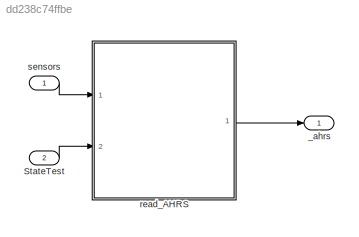
MODEL slx_dd238c74ffbe
KIND model
CONFIG InitFcn = %load QuadCopterParameters
BLOCK [Inport] StateTest
  IconDisplay = Port number
  OutDataTypeStr = Bus: VehicleStates
  Port = 2
BLOCK [Outport] _ahrs
  IconDisplay = Port number
  OutDataTypeStr = Bus: VehicleStates
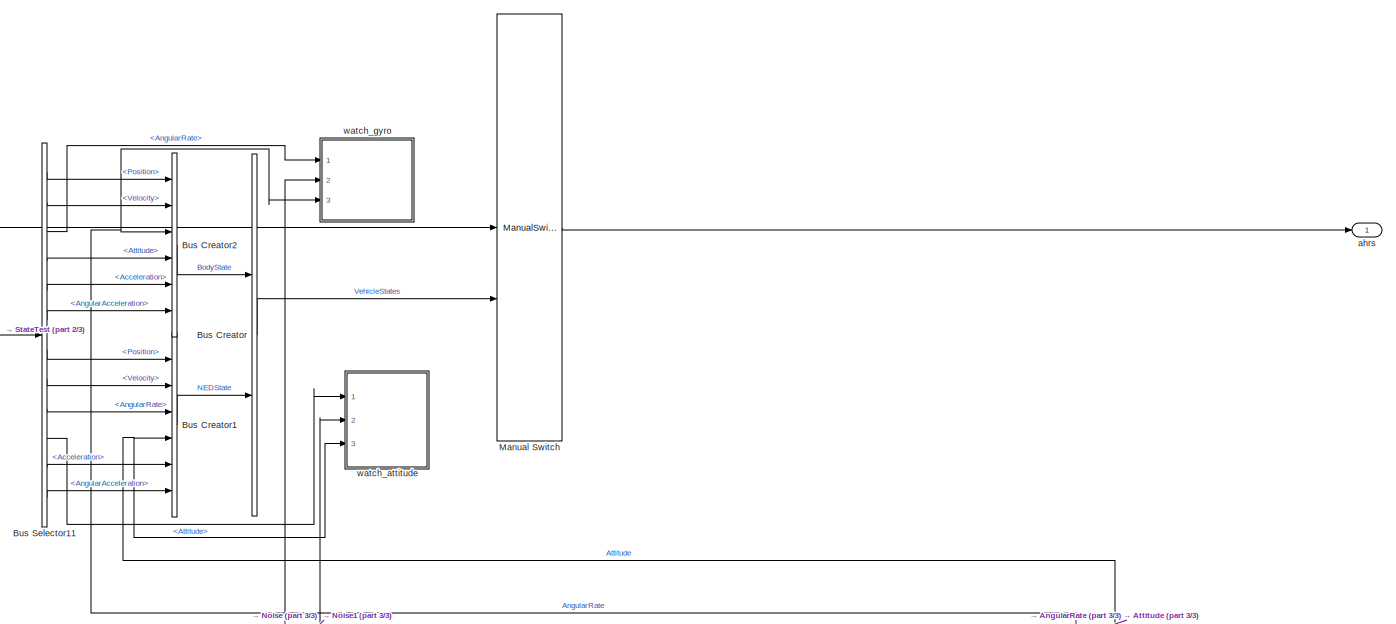
[diagram: read_AHRS - part 1/3, top right region]
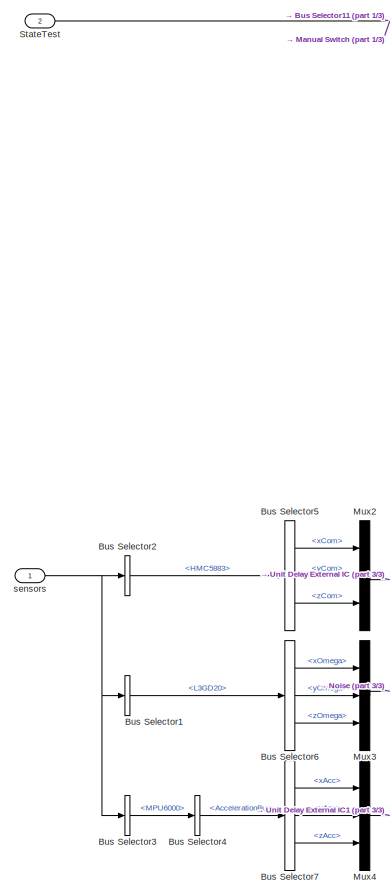
[diagram: read_AHRS - part 2/3, middle left region]
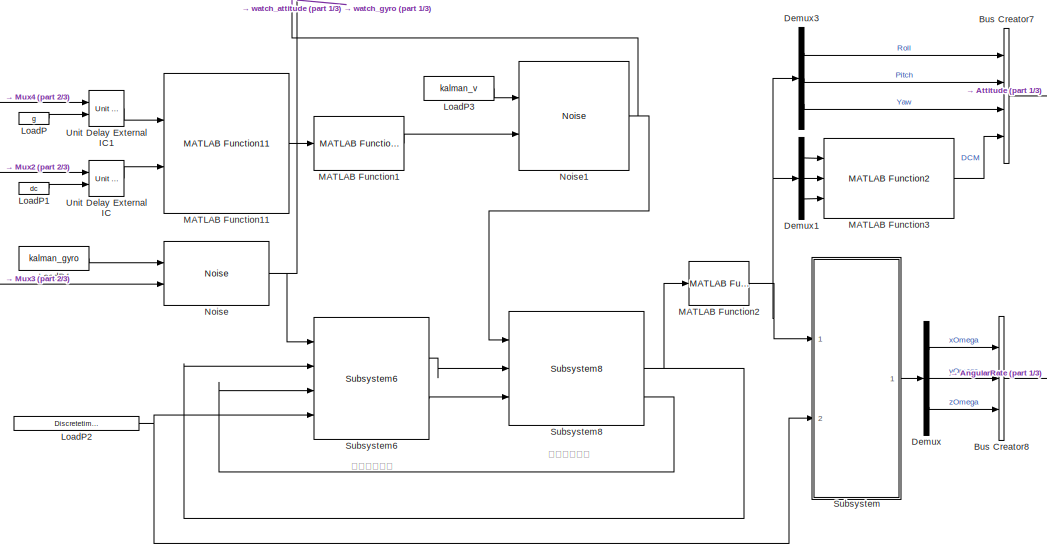
[diagram: read_AHRS - part 3/3, bottom center region]
BLOCK [SubSystem] read_AHRS
  Ports = [2, 1]
  RequestExecContextInheritance = off
BLOCK [BusCreator] read_AHRS/Bus Creator
  DisplayOption = bar
  Inputs = 2
  OutDataTypeStr = Bus: VehicleStates
  Ports = [2, 1]
BLOCK [BusCreator] read_AHRS/Bus Creator1
  DisplayOption = bar
  Inputs = 6
  OutDataTypeStr = Bus: States
  Ports = [6, 1]
BLOCK [BusCreator] read_AHRS/Bus Creator2
  DisplayOption = bar
  Inputs = 6
  OutDataTypeStr = Bus: States
  Ports = [6, 1]
BLOCK [BusCreator] read_AHRS/Bus Creator7
  DisplayOption = bar
  OutDataTypeStr = Bus: AttitudeBus
  Ports = [4, 1]
BLOCK [BusCreator] read_AHRS/Bus Creator8
  DisplayOption = bar
  Inputs = 3
  OutDataTypeStr = Bus: AngularRateBus
  Ports = [3, 1]
BLOCK [BusSelector] read_AHRS/Bus Selector1
  OutputSignals = L3GD20
  Ports = [1, 1]
BLOCK [BusSelector] read_AHRS/Bus Selector11
  OutputSignals = BodyState.Position,BodyState.Velocity,BodyState.AngularRate,BodyState.Attitude,BodyState.Acceleration,BodyState.AngularAcceleration,NEDState.Position,NEDState.Velocity,NEDState.AngularRate,NEDState.Attitude,NEDState.Acceleration,NEDState.AngularAcceleration
  Ports = [1, 12]
BLOCK [BusSelector] read_AHRS/Bus Selector2
  OutputSignals = HMC5883
  Ports = [1, 1]
BLOCK [BusSelector] read_AHRS/Bus Selector3
  OutputSignals = MPU6000
  Ports = [1, 1]
BLOCK [BusSelector] read_AHRS/Bus Selector4
  OutputSignals = AccelerationBus
  Ports = [1, 1]
BLOCK [BusSelector] read_AHRS/Bus Selector5
  OutputSignals = xCom,yCom,zCom
  Ports = [1, 3]
BLOCK [BusSelector] read_AHRS/Bus Selector6
  OutputSignals = xOmega,yOmega,zOmega
  Ports = [1, 3]
BLOCK [BusSelector] read_AHRS/Bus Selector7
  OutputSignals = xAcc,yAcc,zAcc
  Ports = [1, 3]
BLOCK [Demux] read_AHRS/Demux
  DisplayOption = bar
  Outputs = 3
  Ports = [1, 3]
BLOCK [Demux] read_AHRS/Demux1
  DisplayOption = bar
  Outputs = 3
  Ports = [1, 3]
BLOCK [Demux] read_AHRS/Demux3
  DisplayOption = bar
  Outputs = 3
  Ports = [1, 3]
BLOCK [Constant] read_AHRS/LoadP
  SampleTime = 0.0025
  Value = g
BLOCK [Constant] read_AHRS/LoadP1
  SampleTime = 0.0025
  Value = dc
BLOCK [Constant] read_AHRS/LoadP2
  SampleTime = -1
  Value = Discretetime_400Hz
BLOCK [Constant] read_AHRS/LoadP3
  SampleTime = 0.0025
  Value = kalman_v
BLOCK [Constant] read_AHRS/LoadP4
  SampleTime = 0.0025
  Value = kalman_gyro
BLOCK [Reference] read_AHRS/MATLAB Function1  REF=Lib_AP_AHRS/MATLAB Function1
  Ports = [1, 1]
  SourceBlock = Lib_AP_AHRS/MATLAB Function1
  SourceType = SubSystem
BLOCK [Reference] read_AHRS/MATLAB Function11  REF=Lib_AP_AHRS/MATLAB Function11
  Ports = [2, 1]
  SourceBlock = Lib_AP_AHRS/MATLAB Function11
  SourceType = SubSystem
BLOCK [Reference] read_AHRS/MATLAB Function2  REF=Lib_AP_AHRS/MATLAB Function1
  Ports = [1, 1]
  SourceBlock = Lib_AP_AHRS/MATLAB Function1
  SourceType = SubSystem
BLOCK [Reference] read_AHRS/MATLAB Function3  REF=Lib_AP_AHRS/MATLAB Function2
  Ports = [3, 1]
  SourceBlock = Lib_AP_AHRS/MATLAB Function2
  SourceType = SubSystem
BLOCK [ManualSwitch] read_AHRS/Manual Switch
  CurrentSetting = 0
BLOCK [Mux] read_AHRS/Mux2
  DisplayOption = bar
  Inputs = 3
  Ports = [3, 1]
BLOCK [Mux] read_AHRS/Mux3
  DisplayOption = bar
  Inputs = 3
  Ports = [3, 1]
BLOCK [Mux] read_AHRS/Mux4
  DisplayOption = bar
  Inputs = 3
  Ports = [3, 1]
BLOCK [Reference] read_AHRS/Noise  REF=Lib_Sensors/Noise
  Ports = [2, 1]
  SourceBlock = Lib_Sensors/Noise
  SourceType = SubSystem
BLOCK [Reference] read_AHRS/Noise1  REF=Lib_Sensors/Noise
  Ports = [2, 1]
  SourceBlock = Lib_Sensors/Noise
  SourceType = SubSystem
BLOCK [Inport] read_AHRS/StateTest
  IconDisplay = Port number
  OutDataTypeStr = Bus: VehicleStates
  Port = 2
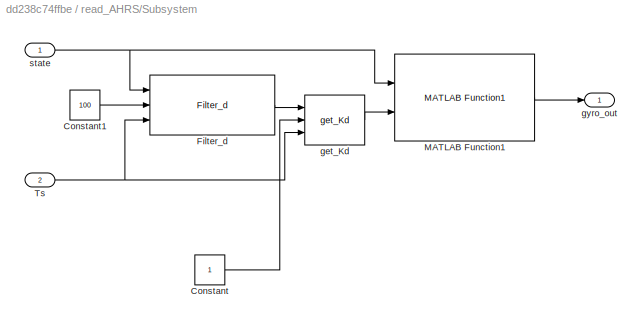
BLOCK [SubSystem] read_AHRS/Subsystem
  Ports = [2, 1]
  RequestExecContextInheritance = off
BLOCK [Constant] read_AHRS/Subsystem/Constant
BLOCK [Constant] read_AHRS/Subsystem/Constant1
  Value = 100
BLOCK [Reference] read_AHRS/Subsystem/Filter_d  REF=Lib_AC_PID/Filter_d
  Description = Tz是时间常数。时间常数一般不小于0.01，否则会振荡。
  Ports = [3, 1]
  SourceBlock = Lib_AC_PID/Filter_d
  SourceType = SubSystem
BLOCK [Reference] read_AHRS/Subsystem/MATLAB Function1  REF=Lib_AC_AttitudeControl/MATLAB Function1
  Ports = [2, 1]
  SourceBlock = Lib_AC_AttitudeControl/MATLAB Function1
  SourceType = SubSystem
BLOCK [Inport] read_AHRS/Subsystem/Ts
  IconDisplay = Port number
  Port = 2
BLOCK [Reference] read_AHRS/Subsystem/get_Kd  REF=Lib_AC_PID/get_Kd
  Ports = [3, 1]
  SourceBlock = Lib_AC_PID/get_Kd
  SourceType = SubSystem
BLOCK [Outport] read_AHRS/Subsystem/gyro_out
  IconDisplay = Port number
BLOCK [Inport] read_AHRS/Subsystem/state
  IconDisplay = Port number
BLOCK [Reference] read_AHRS/Subsystem6  REF=Lib_AP_AHRS/Subsystem6
  Ports = [4, 2]
  SourceBlock = Lib_AP_AHRS/Subsystem6
  SourceType = SubSystem
BLOCK [Reference] read_AHRS/Subsystem8  REF=Lib_AP_AHRS/Subsystem8
  Ports = [3, 3]
  SourceBlock = Lib_AP_AHRS/Subsystem8
  SourceType = SubSystem
BLOCK [Reference] read_AHRS/Unit Delay External IC  REF=simulink/Additional Math
& Discrete/Additional
Discrete/Unit Delay
External IC
  Ports = [2, 1]
  SourceBlock = simulink/Additional Math\n& Discrete/Additional\nDiscrete/Unit Delay\nExternal IC
  SourceType = Unit Delay External Initial Condition
  tsamp = 0.0025
BLOCK [Reference] read_AHRS/Unit Delay External IC1  REF=simulink/Additional Math
& Discrete/Additional
Discrete/Unit Delay
External IC
  Ports = [2, 1]
  SourceBlock = simulink/Additional Math\n& Discrete/Additional\nDiscrete/Unit Delay\nExternal IC
  SourceType = Unit Delay External Initial Condition
  tsamp = 0.0025
BLOCK [Outport] read_AHRS/ahrs
  IconDisplay = Port number
BLOCK [Inport] read_AHRS/sensors
  IconDisplay = Port number
  OutDataTypeStr = Bus: Sensors
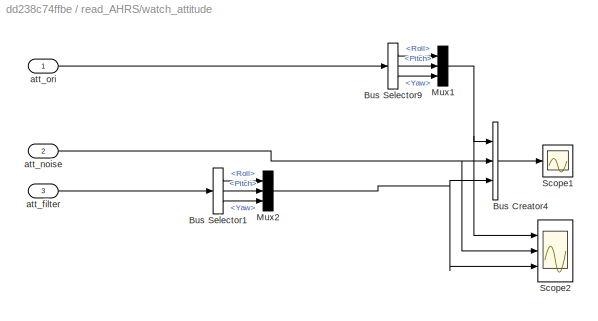
BLOCK [SubSystem] read_AHRS/watch_attitude
  Ports = [3]
  RequestExecContextInheritance = off
BLOCK [BusCreator] read_AHRS/watch_attitude/Bus Creator4
  DisplayOption = bar
  Inputs = 3
  Ports = [3, 1]
BLOCK [BusSelector] read_AHRS/watch_attitude/Bus Selector1
  OutputSignals = Roll,Pitch,Yaw
  Ports = [1, 3]
BLOCK [BusSelector] read_AHRS/watch_attitude/Bus Selector9
  OutputSignals = Roll,Pitch,Yaw
  Ports = [1, 3]
BLOCK [Mux] read_AHRS/watch_attitude/Mux1
  DisplayOption = bar
  Inputs = 3
  Ports = [3, 1]
BLOCK [Mux] read_AHRS/watch_attitude/Mux2
  DisplayOption = bar
  Inputs = 3
  Ports = [3, 1]
BLOCK [Scope] read_AHRS/watch_attitude/Scope1
  Floating = off
  NumInputPorts = 1
  Ports = [1]
  SaveName = ScopeData1
  ShowLegends = off
  ZoomMode = xonly
BLOCK [Scope] read_AHRS/watch_attitude/Scope2
  Floating = off
  NumInputPorts = 3
  Ports = [3]
  ShowLegends = off
  YMax = 5~5~5
  YMin = -5~-5~-5
  ZoomMode = yonly
BLOCK [Inport] read_AHRS/watch_attitude/att_filter
  IconDisplay = Port number
  Port = 3
BLOCK [Inport] read_AHRS/watch_attitude/att_noise
  IconDisplay = Port number
  Port = 2
BLOCK [Inport] read_AHRS/watch_attitude/att_ori
  IconDisplay = Port number
  OutDataTypeStr = Bus: AttitudeBus
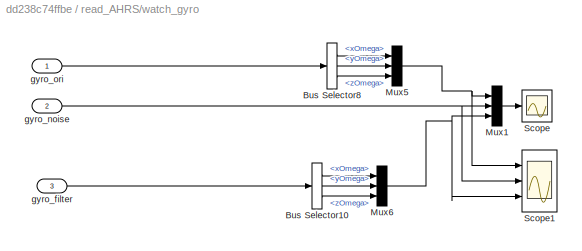
BLOCK [SubSystem] read_AHRS/watch_gyro
  Ports = [3]
  RequestExecContextInheritance = off
BLOCK [BusSelector] read_AHRS/watch_gyro/Bus Selector10
  OutputSignals = xOmega,yOmega,zOmega
  Ports = [1, 3]
BLOCK [BusSelector] read_AHRS/watch_gyro/Bus Selector8
  OutputSignals = xOmega,yOmega,zOmega
  Ports = [1, 3]
BLOCK [Mux] read_AHRS/watch_gyro/Mux1
  DisplayOption = bar
  Inputs = 3
  Ports = [3, 1]
BLOCK [Mux] read_AHRS/watch_gyro/Mux5
  DisplayOption = bar
  Inputs = 3
  Ports = [3, 1]
BLOCK [Mux] read_AHRS/watch_gyro/Mux6
  DisplayOption = bar
  Inputs = 3
  Ports = [3, 1]
BLOCK [Scope] read_AHRS/watch_gyro/Scope
  Floating = off
  NumInputPorts = 1
  Ports = [1]
  ShowLegends = off
  ZoomMode = xonly
BLOCK [Scope] read_AHRS/watch_gyro/Scope1
  Floating = off
  NumInputPorts = 3
  Ports = [3]
  SaveName = ScopeData1
  ShowLegends = off
  YMax = 5~5~5
  YMin = -5~-5~-5
  ZoomMode = yonly
BLOCK [Inport] read_AHRS/watch_gyro/gyro_filter
  IconDisplay = Port number
  OutDataTypeStr = Bus: AngularRateBus
  Port = 3
BLOCK [Inport] read_AHRS/watch_gyro/gyro_noise
  IconDisplay = Port number
  Port = 2
BLOCK [Inport] read_AHRS/watch_gyro/gyro_ori
  IconDisplay = Port number
  OutDataTypeStr = Bus: AngularRateBus
BLOCK [Inport] sensors
  IconDisplay = Port number
  OutDataTypeStr = Bus: Sensors
ANNOTATION read_AHRS: 时间更新方程
ANNOTATION read_AHRS: 测量更新方程
LINE StateTest:1 -> read_AHRS:2
LINE read_AHRS/Bus Creator1:1 -> read_AHRS/Bus Creator:2
LINE read_AHRS/Bus Creator2:1 -> read_AHRS/Bus Creator:1
NET read_AHRS/Bus Creator7:1 -> read_AHRS/Bus Creator1:4, read_AHRS/watch_attitude:3
NET read_AHRS/Bus Creator8:1 -> read_AHRS/Bus Creator2:3, read_AHRS/watch_gyro:3
LINE read_AHRS/Bus Creator:1 -> read_AHRS/Manual Switch:2
LINE read_AHRS/Bus Selector11:1 -> read_AHRS/Bus Creator2:1
LINE read_AHRS/Bus Selector11:10 -> read_AHRS/watch_attitude:1
LINE read_AHRS/Bus Selector11:11 -> read_AHRS/Bus Creator1:5
LINE read_AHRS/Bus Selector11:12 -> read_AHRS/Bus Creator1:6
LINE read_AHRS/Bus Selector11:2 -> read_AHRS/Bus Creator2:2
LINE read_AHRS/Bus Selector11:3 -> read_AHRS/watch_gyro:1
LINE read_AHRS/Bus Selector11:4 -> read_AHRS/Bus Creator2:4
LINE read_AHRS/Bus Selector11:5 -> read_AHRS/Bus Creator2:5
LINE read_AHRS/Bus Selector11:6 -> read_AHRS/Bus Creator2:6
LINE read_AHRS/Bus Selector11:7 -> read_AHRS/Bus Creator1:1
LINE read_AHRS/Bus Selector11:8 -> read_AHRS/Bus Creator1:2
LINE read_AHRS/Bus Selector11:9 -> read_AHRS/Bus Creator1:3
LINE read_AHRS/Bus Selector1:1 -> read_AHRS/Bus Selector6:1
LINE read_AHRS/Bus Selector2:1 -> read_AHRS/Bus Selector5:1
LINE read_AHRS/Bus Selector3:1 -> read_AHRS/Bus Selector4:1
LINE read_AHRS/Bus Selector4:1 -> read_AHRS/Bus Selector7:1
LINE read_AHRS/Bus Selector5:1 -> read_AHRS/Mux2:1
LINE read_AHRS/Bus Selector5:2 -> read_AHRS/Mux2:2
LINE read_AHRS/Bus Selector5:3 -> read_AHRS/Mux2:3
LINE read_AHRS/Bus Selector6:1 -> read_AHRS/Mux3:1
LINE read_AHRS/Bus Selector6:2 -> read_AHRS/Mux3:2
LINE read_AHRS/Bus Selector6:3 -> read_AHRS/Mux3:3
LINE read_AHRS/Bus Selector7:1 -> read_AHRS/Mux4:1
LINE read_AHRS/Bus Selector7:2 -> read_AHRS/Mux4:2
LINE read_AHRS/Bus Selector7:3 -> read_AHRS/Mux4:3
LINE read_AHRS/Demux1:1 -> read_AHRS/MATLAB Function3:1
LINE read_AHRS/Demux1:2 -> read_AHRS/MATLAB Function3:2
LINE read_AHRS/Demux1:3 -> read_AHRS/MATLAB Function3:3
LINE read_AHRS/Demux3:1 -> read_AHRS/Bus Creator7:1
LINE read_AHRS/Demux3:2 -> read_AHRS/Bus Creator7:2
LINE read_AHRS/Demux3:3 -> read_AHRS/Bus Creator7:3
LINE read_AHRS/Demux:1 -> read_AHRS/Bus Creator8:1
LINE read_AHRS/Demux:2 -> read_AHRS/Bus Creator8:2
LINE read_AHRS/Demux:3 -> read_AHRS/Bus Creator8:3
LINE read_AHRS/LoadP1:1 -> read_AHRS/Unit Delay External IC:2
NET read_AHRS/LoadP2:1 -> read_AHRS/Subsystem6:4, read_AHRS/Subsystem:2
LINE read_AHRS/LoadP3:1 -> read_AHRS/Noise1:1
LINE read_AHRS/LoadP4:1 -> read_AHRS/Noise:1
LINE read_AHRS/LoadP:1 -> read_AHRS/Unit Delay External IC1:2
LINE read_AHRS/MATLAB Function11:1 -> read_AHRS/MATLAB Function1:1
LINE read_AHRS/MATLAB Function1:1 -> read_AHRS/Noise1:2
NET read_AHRS/MATLAB Function2:1 -> read_AHRS/Demux1:1, read_AHRS/Demux3:1, read_AHRS/Subsystem:1
LINE read_AHRS/MATLAB Function3:1 -> read_AHRS/Bus Creator7:4
LINE read_AHRS/Manual Switch:1 -> read_AHRS/ahrs:1
LINE read_AHRS/Mux2:1 -> read_AHRS/Unit Delay External IC:1
LINE read_AHRS/Mux3:1 -> read_AHRS/Noise:2
LINE read_AHRS/Mux4:1 -> read_AHRS/Unit Delay External IC1:1
NET read_AHRS/Noise1:1 -> read_AHRS/Subsystem8:1, read_AHRS/watch_attitude:2
NET read_AHRS/Noise:1 -> read_AHRS/Subsystem6:1, read_AHRS/watch_gyro:2
NET read_AHRS/StateTest:1 -> read_AHRS/Bus Selector11:1, read_AHRS/Manual Switch:1
LINE read_AHRS/Subsystem/Constant1:1 -> read_AHRS/Subsystem/Filter_d:2
LINE read_AHRS/Subsystem/Constant:1 -> read_AHRS/Subsystem/get_Kd:2
LINE read_AHRS/Subsystem/Filter_d:1 -> read_AHRS/Subsystem/get_Kd:1
LINE read_AHRS/Subsystem/MATLAB Function1:1 -> read_AHRS/Subsystem/gyro_out:1
NET read_AHRS/Subsystem/Ts:1 -> read_AHRS/Subsystem/Filter_d:3, read_AHRS/Subsystem/get_Kd:3
LINE read_AHRS/Subsystem/get_Kd:1 -> read_AHRS/Subsystem/MATLAB Function1:2
NET read_AHRS/Subsystem/state:1 -> read_AHRS/Subsystem/Filter_d:1, read_AHRS/Subsystem/MATLAB Function1:1
LINE read_AHRS/Subsystem6:1 -> read_AHRS/Subsystem8:2
LINE read_AHRS/Subsystem6:2 -> read_AHRS/Subsystem8:3
NET read_AHRS/Subsystem8:2 -> read_AHRS/MATLAB Function2:1, read_AHRS/Subsystem6:2
LINE read_AHRS/Subsystem8:3 -> read_AHRS/Subsystem6:3
LINE read_AHRS/Subsystem:1 -> read_AHRS/Demux:1
LINE read_AHRS/Unit Delay External IC1:1 -> read_AHRS/MATLAB Function11:1
LINE read_AHRS/Unit Delay External IC:1 -> read_AHRS/MATLAB Function11:2
NET read_AHRS/sensors:1 -> read_AHRS/Bus Selector1:1, read_AHRS/Bus Selector2:1, read_AHRS/Bus Selector3:1
LINE read_AHRS/watch_attitude/Bus Creator4:1 -> read_AHRS/watch_attitude/Scope1:1
LINE read_AHRS/watch_attitude/Bus Selector1:1 -> read_AHRS/watch_attitude/Mux2:1
LINE read_AHRS/watch_attitude/Bus Selector1:2 -> read_AHRS/watch_attitude/Mux2:2
LINE read_AHRS/watch_attitude/Bus Selector1:3 -> read_AHRS/watch_attitude/Mux2:3
LINE read_AHRS/watch_attitude/Bus Selector9:1 -> read_AHRS/watch_attitude/Mux1:1
LINE read_AHRS/watch_attitude/Bus Selector9:2 -> read_AHRS/watch_attitude/Mux1:2
LINE read_AHRS/watch_attitude/Bus Selector9:3 -> read_AHRS/watch_attitude/Mux1:3
NET read_AHRS/watch_attitude/Mux1:1 -> read_AHRS/watch_attitude/Bus Creator4:1, read_AHRS/watch_attitude/Scope2:1
NET read_AHRS/watch_attitude/Mux2:1 -> read_AHRS/watch_attitude/Bus Creator4:3, read_AHRS/watch_attitude/Scope2:3
LINE read_AHRS/watch_attitude/att_filter:1 -> read_AHRS/watch_attitude/Bus Selector1:1
NET read_AHRS/watch_attitude/att_noise:1 -> read_AHRS/watch_attitude/Bus Creator4:2, read_AHRS/watch_attitude/Scope2:2
LINE read_AHRS/watch_attitude/att_ori:1 -> read_AHRS/watch_attitude/Bus Selector9:1
LINE read_AHRS/watch_gyro/Bus Selector10:1 -> read_AHRS/watch_gyro/Mux6:1
LINE read_AHRS/watch_gyro/Bus Selector10:2 -> read_AHRS/watch_gyro/Mux6:2
LINE read_AHRS/watch_gyro/Bus Selector10:3 -> read_AHRS/watch_gyro/Mux6:3
LINE read_AHRS/watch_gyro/Bus Selector8:1 -> read_AHRS/watch_gyro/Mux5:1
LINE read_AHRS/watch_gyro/Bus Selector8:2 -> read_AHRS/watch_gyro/Mux5:2
LINE read_AHRS/watch_gyro/Bus Selector8:3 -> read_AHRS/watch_gyro/Mux5:3
LINE read_AHRS/watch_gyro/Mux1:1 -> read_AHRS/watch_gyro/Scope:1
NET read_AHRS/watch_gyro/Mux5:1 -> read_AHRS/watch_gyro/Mux1:1, read_AHRS/watch_gyro/Scope1:1
NET read_AHRS/watch_gyro/Mux6:1 -> read_AHRS/watch_gyro/Mux1:3, read_AHRS/watch_gyro/Scope1:3
LINE read_AHRS/watch_gyro/gyro_filter:1 -> read_AHRS/watch_gyro/Bus Selector10:1
NET read_AHRS/watch_gyro/gyro_noise:1 -> read_AHRS/watch_gyro/Mux1:2, read_AHRS/watch_gyro/Scope1:2
LINE read_AHRS/watch_gyro/gyro_ori:1 -> read_AHRS/watch_gyro/Bus Selector8:1
LINE read_AHRS:1 -> _ahrs:1
LINE sensors:1 -> read_AHRS:1
note: NET lines group one-source signal fan-out (src -> all destinations, sorted); 1:1 wires keep LINE
